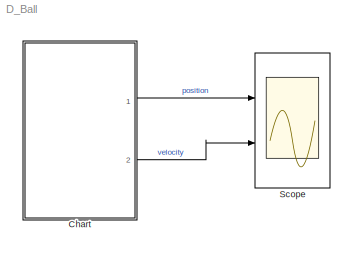
MODEL D_Ball
KIND model
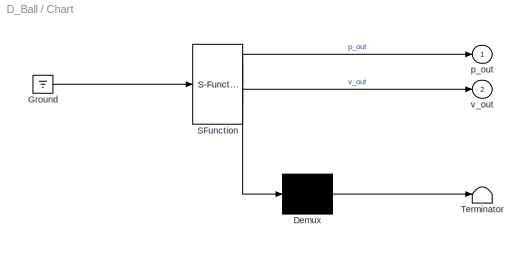
BLOCK [SubSystem] Chart
  BlockKeywords = __PRM__SERIALIZED__DATA__:Stateflow Chart,Stateflow Diagram
  ErrorFcn = Stateflow.Translate.translate
  PermitHierarchicalResolution = ExplicitOnly
  Ports = [0, 2]
  RequestExecContextInheritance = off
  SFBlockType = Chart
  SID = 1
  TreatAsAtomicUnit = on
BLOCK [Demux] Chart/ Demux 
  Outputs = 1
  Ports = [1, 1]
  SID = 1::94
BLOCK [Ground] Chart/ Ground 
  SID = 1::102
BLOCK [S-Function] Chart/ SFunction 
  EnableBusSupport = on
  FunctionName = sf_sfun
  PortCounts = [1 3]
  Ports = [1, 3]
  SFcnIsStateOwnerBlock = off
  SFunctionDeploymentMode = off
  SID = 1::93
  Tag = Stateflow S-Function D_Ball 3
BLOCK [Terminator] Chart/ Terminator 
  SID = 1::95
BLOCK [Outport] Chart/p_out
  IconDisplay = Port number
  SID = 1::100
BLOCK [Outport] Chart/v_out
  IconDisplay = Port number
  Port = 2
  SID = 1::101
BLOCK [Scope] Scope
  Floating = off
  NumInputPorts = 2
  Ports = [2]
  SID = 2
  ScopeSpecificationString = Simulink.scopes.TimeScopeBlockCfg('CurrentConfiguration', extmgr.ConfigurationSet(extmgr.Configuration('Core','General UI',true),extmgr.Configuration('Core','Source UI',true),extmgr.Configuration('Sources','WiredSimulink',true),extmgr.Configuration('Visuals','Time Domain',true,'SerializedDisplays',{struct('MinYLimReal','-25.87945','MaxYLimReal','26.81209','YLabelReal','','MinYLimMag','0.00000','Ma...<+1372ch>
LINE Chart/ Demux :1 -> Chart/ Terminator :1
LINE Chart/ Ground :1 -> Chart/ SFunction :1
LINE Chart/ SFunction :1 -> Chart/ Demux :1
LINE Chart/ SFunction :2 -> Chart/p_out:1
LINE Chart/ SFunction :3 -> Chart/v_out:1
LINE Chart:1 -> Scope:1
LINE Chart:2 -> Scope:2
CHART Chart states=1 transitions=2
  STATE_LABEL 'Falling\\ndu:\\np=p+v*0.01;\\nv=v-9.81*0.01;\\np_out=p;\\nv_out=v;\\n'
